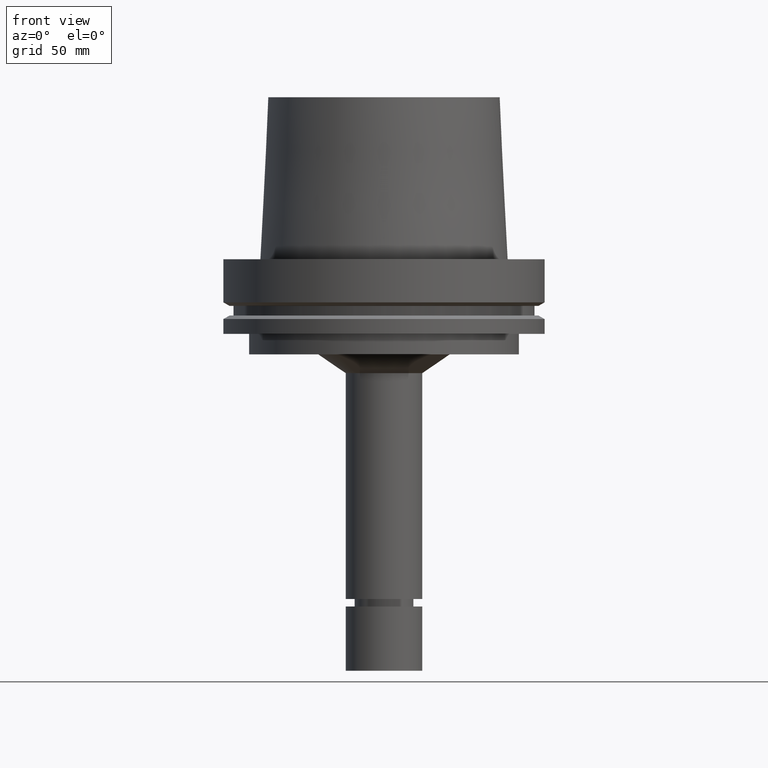
[diagram: clean part render]
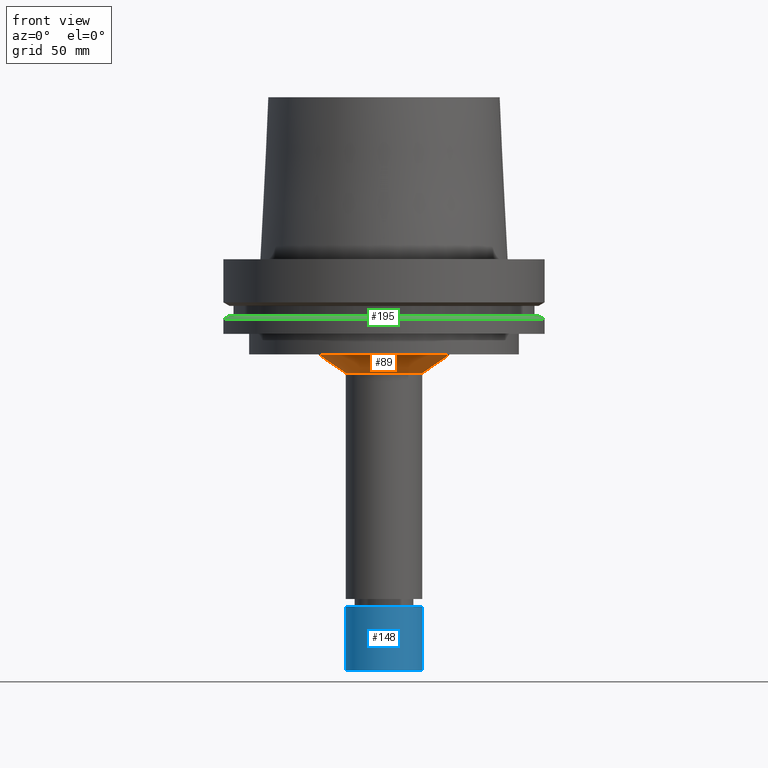
[diagram: same view with three faces highlighted in distinct colors, each labeled with its STEP entity id]
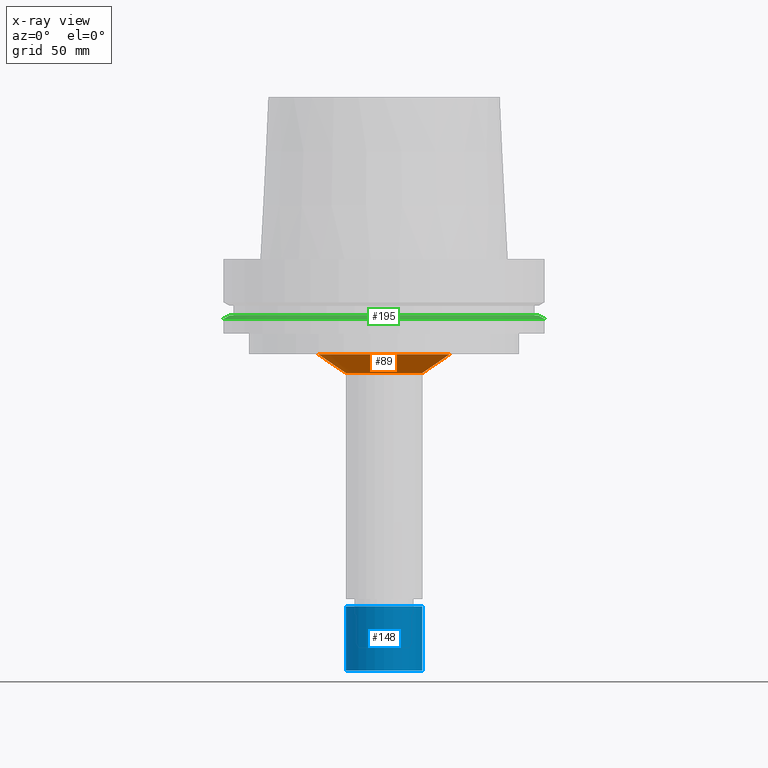
[diagram: x-ray of the same camera — body ghosted, the three highlighted faces saturated]
A machine part, front view with three faces highlighted in distinct colors.
The next image is the same camera in x-ray (body ghosted, the three faces saturated) — at least one of them is partly hidden behind the body in this view.
Their STEP definitions:

[orange] entity #89 — the highlighted conical surface has half-angle 55.809 deg.
#89=ADVANCED_FACE('Unnamed[1]',(#232,#233),#234,.T.);
#140=EDGE_CURVE('Unnamed[1]',#312,#312,#313,.T.);
#187=EDGE_CURVE('Unnamed[1]',#384,#384,#385,.T.);
#232=FACE_BOUND('',#434,.T.);
#233=FACE_BOUND('',#435,.T.);
#234=CONICAL_SURFACE('',#436,20.3465340776725,0.974044773767838);
#312=VERTEX_POINT('',#534);
#313=CIRCLE('',#535,25.6930681553449);
#384=VERTEX_POINT('',#624);
#385=CIRCLE('',#625,15.0000000000001);
#434=EDGE_LOOP('',(#663));
#435=EDGE_LOOP('',(#664));
#436=AXIS2_PLACEMENT_3D('',#665,#666,#667);
#534=CARTESIAN_POINT('',(2.26559657842261E-015,25.6930681553449,-37.0000000000001));
#535=AXIS2_PLACEMENT_3D('',#755,#756,#757);
#624=CARTESIAN_POINT('',(2.71042752545055E-015,15.0,-44.264640667622));
#625=AXIS2_PLACEMENT_3D('',#833,#834,#835);
#663=ORIENTED_EDGE('',*,*,#187,.F.);
#664=ORIENTED_EDGE('',*,*,#140,.T.);
#665=CARTESIAN_POINT('',(2.48801205193658E-015,-2.41832844587254E-014,-40.6323203338111));
#666=DIRECTION('',(-6.12323399573677E-017,7.06999605799595E-016,1.0));
#667=DIRECTION('',(3.8464087481278E-032,1.0,-7.06999605799595E-016));
#755=CARTESIAN_POINT('',(2.26559657842261E-015,-2.16152354145834E-014,-37.0000000000001));
#756=DIRECTION('',(6.12323399573677E-017,-7.06999605799675E-016,-1.0));
#757=DIRECTION('',(3.84640874812948E-032,1.0,-7.06999605799675E-016));
#833=CARTESIAN_POINT('',(2.71042752545055E-015,-2.67513335028674E-014,-44.264640667622));
#834=DIRECTION('',(6.12323399573677E-017,-7.06999605799458E-016,-1.0));
#835=DIRECTION('',(3.84640874812492E-032,1.0,-7.06999605799458E-016));

[blue] entity #148 — the highlighted cylindrical surface (bore or boss wall) has radius 15 mm, axis along (0, -0, -1).
#113=EDGE_CURVE('Unnamed[1]',#269,#269,#270,.T.);
#148=ADVANCED_FACE('Unnamed[1]',(#323,#324),#325,.T.);
#174=EDGE_CURVE('Unnamed[1]',#364,#364,#365,.T.);
#269=VERTEX_POINT('',#480);
#270=CIRCLE('',#481,15.0000000000002);
#323=FACE_BOUND('',#548,.T.);
#324=FACE_BOUND('',#549,.T.);
#325=CYLINDRICAL_SURFACE('',#550,15.0000000000002);
#364=VERTEX_POINT('',#598);
#365=CIRCLE('',#599,15.0000000000001);
#480=CARTESIAN_POINT('',(8.26636589424463E-015,15.0000000000001,-135.0));
#481=AXIS2_PLACEMENT_3D('',#707,#708,#709);
#548=EDGE_LOOP('',(#767));
#549=EDGE_LOOP('',(#768));
#550=AXIS2_PLACEMENT_3D('',#769,#770,#771);
#598=CARTESIAN_POINT('',(9.79717439317883E-015,15.0,-160.0));
#599=AXIS2_PLACEMENT_3D('',#812,#813,#814);
#707=CARTESIAN_POINT('',(8.26636589424463E-015,-9.09011967829394E-014,-135.0));
#708=DIRECTION('',(6.12323399573677E-017,-7.06999605799552E-016,-1.0));
#709=DIRECTION('',(3.84640874812741E-032,1.0,-7.06999605799552E-016));
#767=ORIENTED_EDGE('',*,*,#174,.F.);
#768=ORIENTED_EDGE('',*,*,#113,.T.);
#769=CARTESIAN_POINT('',(9.03177014371173E-015,-9.97386918554338E-014,-147.5));
#770=DIRECTION('',(6.12323399573677E-017,-7.06999605799552E-016,-1.0));
#771=DIRECTION('',(3.84640874812741E-032,1.0,-7.06999605799552E-016));
#812=CARTESIAN_POINT('',(9.79717439317883E-015,-1.08576186927928E-013,-160.0));
#813=DIRECTION('',(6.12323399573677E-017,-7.06999605799552E-016,-1.0));
#814=DIRECTION('',(3.84640874812741E-032,1.0,-7.06999605799552E-016));

[green] entity #195 — the highlighted conical surface has half-angle 60 deg.
#121=EDGE_CURVE('Unnamed[1]',#282,#282,#283,.T.);
#145=EDGE_CURVE('Unnamed[1]',#319,#319,#320,.T.);
#195=ADVANCED_FACE('Unnamed[1]',(#396,#397),#398,.T.);
#282=VERTEX_POINT('',#496);
#283=CIRCLE('',#497,60.122595264194);
#319=VERTEX_POINT('',#543);
#320=CIRCLE('',#544,62.5);
#396=FACE_BOUND('',#639,.T.);
#397=FACE_BOUND('',#640,.T.);
#398=CONICAL_SURFACE('',#641,61.311297632097,1.04719755119646);
#496=CARTESIAN_POINT('',(1.33945743656747E-015,60.122595264194,-21.8750000000009));
#497=AXIS2_PLACEMENT_3D('',#722,#723,#724);
#543=CARTESIAN_POINT('',(1.42350465640827E-015,62.5,-23.2475952641916));
#544=AXIS2_PLACEMENT_3D('',#763,#764,#765);
#639=EDGE_LOOP('',(#846));
#640=EDGE_LOOP('',(#847));
#641=AXIS2_PLACEMENT_3D('',#848,#849,#850);
#722=CARTESIAN_POINT('',(1.33945743656747E-015,-1.09218663768656E-014,-21.8750000000008));
#723=DIRECTION('',(6.12323399573677E-017,-7.0699960579949E-016,-1.0));
#724=DIRECTION('',(3.84640874812544E-032,1.0,-7.0699960579949E-016));
#763=CARTESIAN_POINT('',(1.42350465640827E-015,-1.18922906875708E-014,-23.2475952641915));
#764=DIRECTION('',(6.12323399573677E-017,-7.06999605799599E-016,-1.0));
#765=DIRECTION('',(3.84640874812857E-032,1.0,-7.06999605799599E-016));
#846=ORIENTED_EDGE('',*,*,#145,.F.);
#847=ORIENTED_EDGE('',*,*,#121,.T.);
#848=CARTESIAN_POINT('',(1.38148104648787E-015,-1.14070785322182E-014,-22.5612976320962));
#849=DIRECTION('',(6.12323399573677E-017,-7.06999605799756E-016,-1.0));
#850=DIRECTION('',(3.84640874812938E-032,1.0,-7.06999605799756E-016));